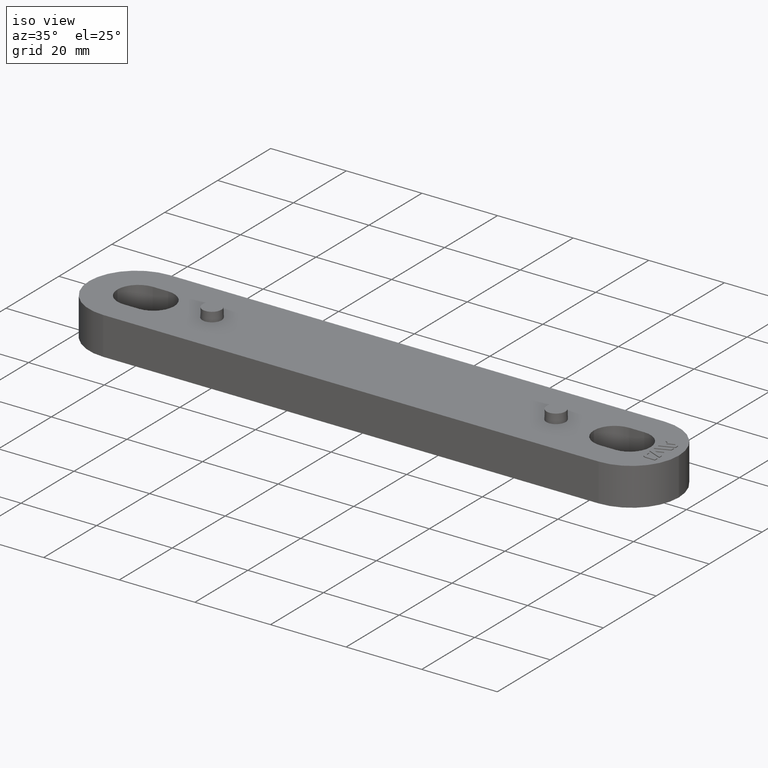
[diagram: clean part render]
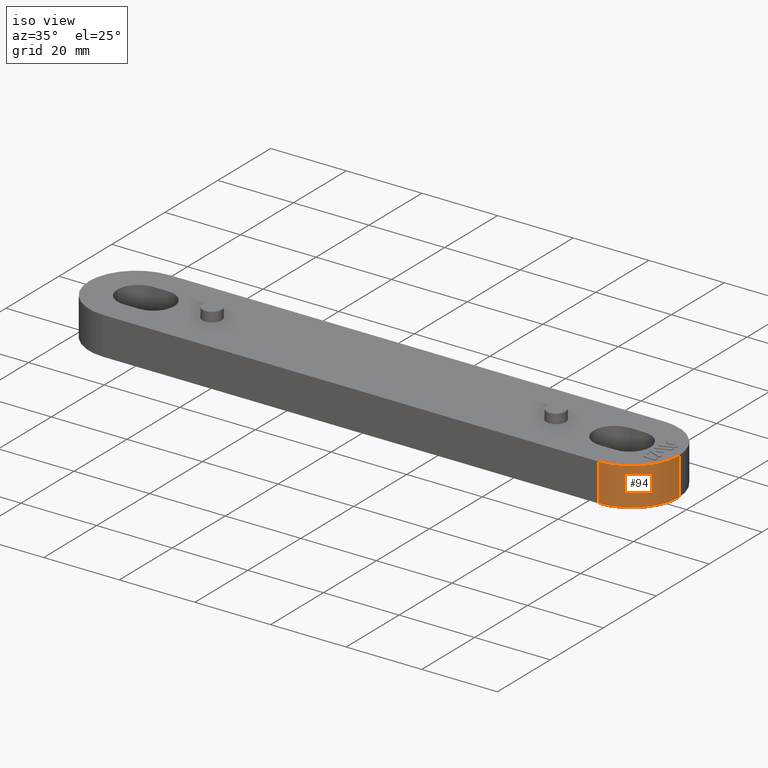
[diagram: same view with one face highlighted and labeled with its STEP entity id]
A machine part, iso view. The second image highlights one B-rep face of the part: STEP entity #94.
In plain terms, the highlighted cylindrical surface (partial cylindrical patch) has radius 12.5 mm, axis along (0, -0, -1).
Its self-contained STEP definition (entity closure, byte-faithful):
#94 = ADVANCED_FACE( '', ( #734 ), #735, .T. );
#734 = FACE_OUTER_BOUND( '', #2052, .T. );
#735 = CYLINDRICAL_SURFACE( '', #2053, 12.5000000000000 );
#2052 = EDGE_LOOP( '', ( #3496, #3497, #3498, #3499 ) );
#2053 = AXIS2_PLACEMENT_3D( '', #3500, #3501, #3502 );
#3496 = ORIENTED_EDGE( '', *, *, #8240, .T. );
#3497 = ORIENTED_EDGE( '', *, *, #8315, .F. );
#3498 = ORIENTED_EDGE( '', *, *, #8316, .F. );
#3499 = ORIENTED_EDGE( '', *, *, #8264, .T. );
#3500 = CARTESIAN_POINT( '', ( 65.5000000000000, -1.73472347597680E-015, -1.38777878078145E-014 ) );
#3501 = DIRECTION( '', ( 1.12103877145986E-048, -6.12303176911189E-017, -1.00000000000000 ) );
#3502 = DIRECTION( '', ( -1.00000000000000, 1.60814287233912E-016, -9.84670989660330E-033 ) );
#8240 = EDGE_CURVE( '', #9791, #9799, #9801, .T. );
#8264 = EDGE_CURVE( '', #9848, #9791, #9849, .T. );
#8315 = EDGE_CURVE( '', #9939, #9799, #9941, .T. );
#8316 = EDGE_CURVE( '', #9848, #9939, #9942, .T. );
#9791 = VERTEX_POINT( '', #12368 );
#9799 = VERTEX_POINT( '', #12377 );
#9801 = CIRCLE( '', #12380, 12.5000000000000 );
#9848 = VERTEX_POINT( '', #12444 );
#9849 = LINE( '', #12445, #12446 );
#9939 = VERTEX_POINT( '', #12565 );
#9941 = LINE( '', #12568, #12569 );
#9942 = CIRCLE( '', #12570, 12.5000000000000 );
#12368 = CARTESIAN_POINT( '', ( 78.0000000000000, -7.91833504147631E-015, 9.99999999999998 ) );
#12377 = CARTESIAN_POINT( '', ( 65.5000000000001, -12.5000000000000, 9.99999999999998 ) );
#12380 = AXIS2_PLACEMENT_3D( '', #16378, #16379, #16380 );
#12444 = CARTESIAN_POINT( '', ( 78.0000000000000, -8.53063821838750E-015, -1.38777878078145E-014 ) );
#12445 = CARTESIAN_POINT( '', ( 78.0000000000000, -8.53063821838750E-015, -1.38777878078145E-014 ) );
#12446 = VECTOR( '', #16416, 1000.00000000000 );
#12565 = CARTESIAN_POINT( '', ( 65.5000000000001, -12.5000000000000, -1.31124088366755E-014 ) );
#12568 = CARTESIAN_POINT( '', ( 65.5000000000001, -12.5000000000000, -1.31124088366755E-014 ) );
#12569 = VECTOR( '', #16507, 1000.00000000000 );
#12570 = AXIS2_PLACEMENT_3D( '', #16508, #16509, #16510 );
#16378 = CARTESIAN_POINT( '', ( 65.5000000000000, -1.12242029906562E-015, 9.99999999999998 ) );
#16379 = DIRECTION( '', ( 2.24207754291971E-048, -6.12303176911189E-017, -1.00000000000000 ) );
#16380 = DIRECTION( '', ( 1.60814287233912E-016, 1.00000000000000, -6.12303176911189E-017 ) );
#16416 = DIRECTION( '', ( 0.000000000000000, 6.12303176911189E-017, 1.00000000000000 ) );
#16507 = DIRECTION( '', ( 0.000000000000000, 6.12303176911189E-017, 1.00000000000000 ) );
#16508 = CARTESIAN_POINT( '', ( 65.5000000000000, -1.73472347597680E-015, -1.38777878078145E-014 ) );
#16509 = DIRECTION( '', ( 2.24207754291971E-048, -6.12303176911189E-017, -1.00000000000000 ) );
#16510 = DIRECTION( '', ( 1.60814287233912E-016, 1.00000000000000, -6.12303176911189E-017 ) );